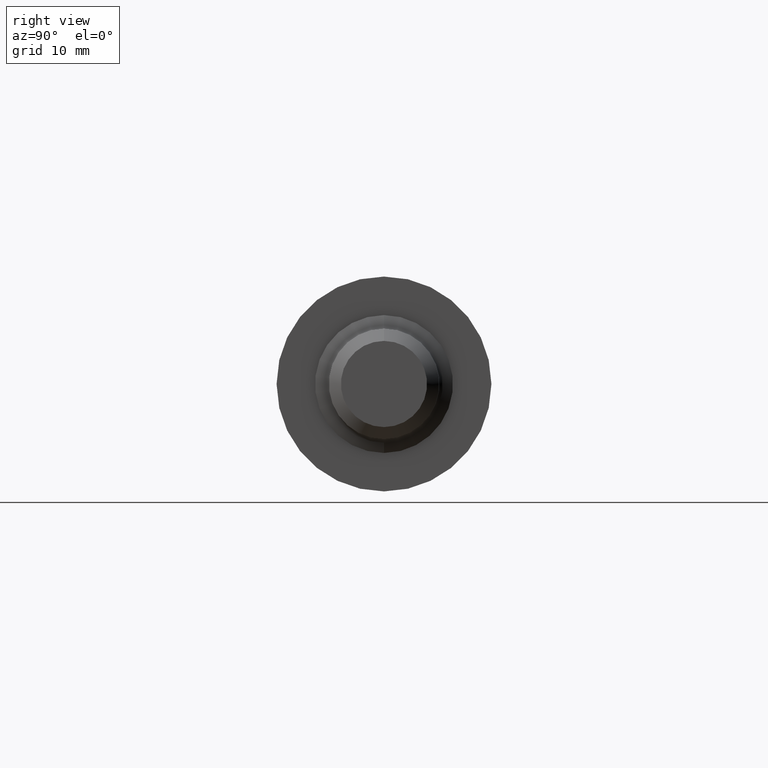
[diagram: clean part render]
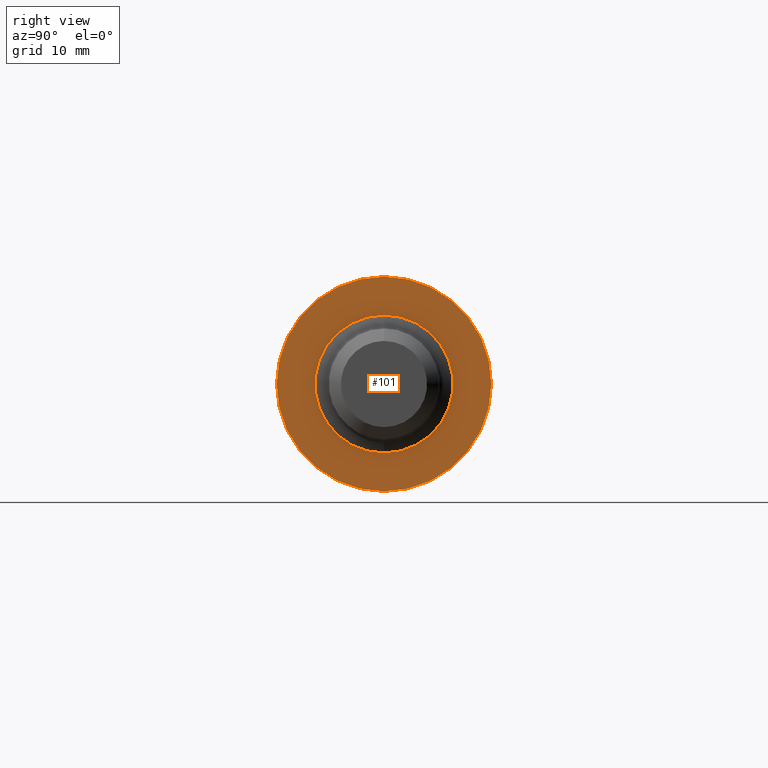
[diagram: same view with one face highlighted and labeled with its STEP entity id]
A machine part, right view. The second image highlights one B-rep face of the part: STEP entity #101.
In plain terms, the highlighted planar face has unit normal (-1, 0, -0).
Its self-contained STEP definition (entity closure, byte-faithful):
#12 = CARTESIAN_POINT ( 'NONE',  ( 2.616999999999999993, 0.4440000000000000058, 0.000000000000000000 ) ) ;
#15 = DIRECTION ( 'NONE',  ( -0.000000000000000000, 0.000000000000000000, 1.000000000000000000 ) ) ;
#19 = VERTEX_POINT ( 'NONE', #40 ) ;
#37 = CIRCLE ( 'NONE', #216, 0.2849999999999999756 ) ;
#39 = DIRECTION ( 'NONE',  ( -1.000000000000000000, -0.000000000000000000, -0.000000000000000000 ) ) ;
#40 = CARTESIAN_POINT ( 'NONE',  ( 2.616999999999999993, 3.490243377569956308E-17, -0.2849999999999999756 ) ) ;
#44 = EDGE_LOOP ( 'NONE', ( #278, #558 ) ) ;
#45 = CARTESIAN_POINT ( 'NONE',  ( 2.616999999999999993, 5.437431788214248526E-17, -0.4440000000000000058 ) ) ;
#56 = FACE_BOUND ( 'NONE', #660, .T. ) ;
#78 = CARTESIAN_POINT ( 'NONE',  ( 2.616999999999999993, 0.000000000000000000, 0.4440000000000000058 ) ) ;
#101 = ADVANCED_FACE ( 'NONE', ( #595, #56 ), #268, .F. ) ;
#107 = DIRECTION ( 'NONE',  ( -1.000000000000000000, -0.000000000000000000, -0.000000000000000000 ) ) ;
#112 = CIRCLE ( 'NONE', #505, 0.4440000000000000058 ) ;
#143 = CARTESIAN_POINT ( 'NONE',  ( 2.616999999999999993, 0.000000000000000000, 0.2849999999999999756 ) ) ;
#151 = CARTESIAN_POINT ( 'NONE',  ( 2.616999999999999993, 0.000000000000000000, 0.000000000000000000 ) ) ;
#156 = CARTESIAN_POINT ( 'NONE',  ( 2.616999999999999993, 0.000000000000000000, 0.000000000000000000 ) ) ;
#200 = ORIENTED_EDGE ( 'NONE', *, *, #433, .T. ) ;
#203 = AXIS2_PLACEMENT_3D ( 'NONE', #391, #561, #287 ) ;
#207 = DIRECTION ( 'NONE',  ( -1.000000000000000000, -0.000000000000000000, -0.000000000000000000 ) ) ;
#209 = CARTESIAN_POINT ( 'NONE',  ( 2.616999999999999993, 0.000000000000000000, 0.000000000000000000 ) ) ;
#216 = AXIS2_PLACEMENT_3D ( 'NONE', #209, #207, #423 ) ;
#268 = PLANE ( 'NONE',  #462 ) ;
#275 = AXIS2_PLACEMENT_3D ( 'NONE', #151, #39, #427 ) ;
#278 = ORIENTED_EDGE ( 'NONE', *, *, #430, .F. ) ;
#287 = DIRECTION ( 'NONE',  ( 0.000000000000000000, 0.000000000000000000, 1.000000000000000000 ) ) ;
#299 = ORIENTED_EDGE ( 'NONE', *, *, #392, .T. ) ;
#336 = VERTEX_POINT ( 'NONE', #78 ) ;
#357 = DIRECTION ( 'NONE',  ( 0.000000000000000000, 0.000000000000000000, 1.000000000000000000 ) ) ;
#391 = CARTESIAN_POINT ( 'NONE',  ( 2.616999999999999993, 0.000000000000000000, 0.000000000000000000 ) ) ;
#392 = EDGE_CURVE ( 'NONE', #601, #19, #519, .T. ) ;
#423 = DIRECTION ( 'NONE',  ( 0.000000000000000000, 0.000000000000000000, 1.000000000000000000 ) ) ;
#427 = DIRECTION ( 'NONE',  ( 0.000000000000000000, 0.000000000000000000, 1.000000000000000000 ) ) ;
#429 = CIRCLE ( 'NONE', #275, 0.4440000000000000058 ) ;
#430 = EDGE_CURVE ( 'NONE', #336, #442, #112, .T. ) ;
#433 = EDGE_CURVE ( 'NONE', #19, #601, #37, .T. ) ;
#438 = DIRECTION ( 'NONE',  ( -1.000000000000000000, 0.000000000000000000, -0.000000000000000000 ) ) ;
#442 = VERTEX_POINT ( 'NONE', #45 ) ;
#462 = AXIS2_PLACEMENT_3D ( 'NONE', #12, #438, #15 ) ;
#479 = EDGE_CURVE ( 'NONE', #442, #336, #429, .T. ) ;
#505 = AXIS2_PLACEMENT_3D ( 'NONE', #156, #107, #357 ) ;
#519 = CIRCLE ( 'NONE', #203, 0.2849999999999999756 ) ;
#558 = ORIENTED_EDGE ( 'NONE', *, *, #479, .F. ) ;
#561 = DIRECTION ( 'NONE',  ( -1.000000000000000000, -0.000000000000000000, -0.000000000000000000 ) ) ;
#595 = FACE_OUTER_BOUND ( 'NONE', #44, .T. ) ;
#601 = VERTEX_POINT ( 'NONE', #143 ) ;
#660 = EDGE_LOOP ( 'NONE', ( #299, #200 ) ) ;